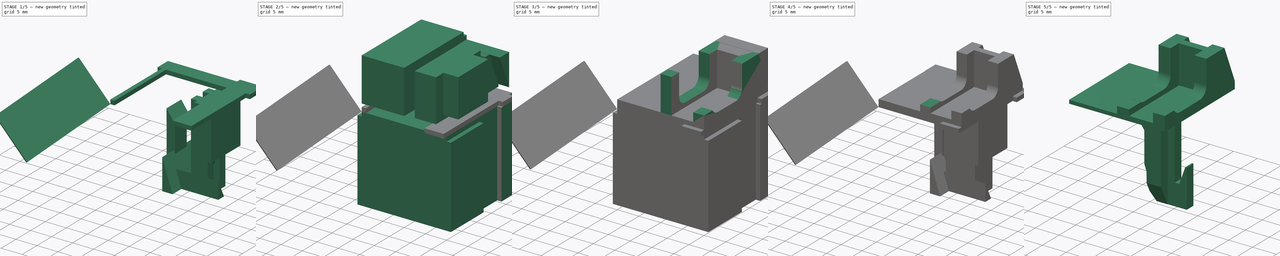
[diagram: build sequence overview — one tinted view per stage of 5, left to right]
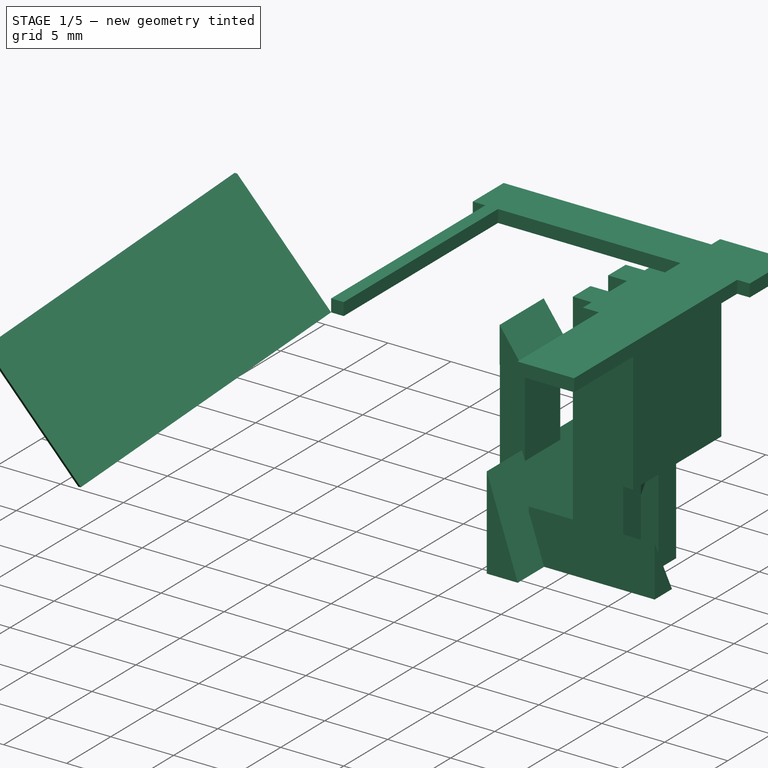
[diagram: stage 1 of 5 — iso view after this stage's code; geometry added in this stage tinted green]
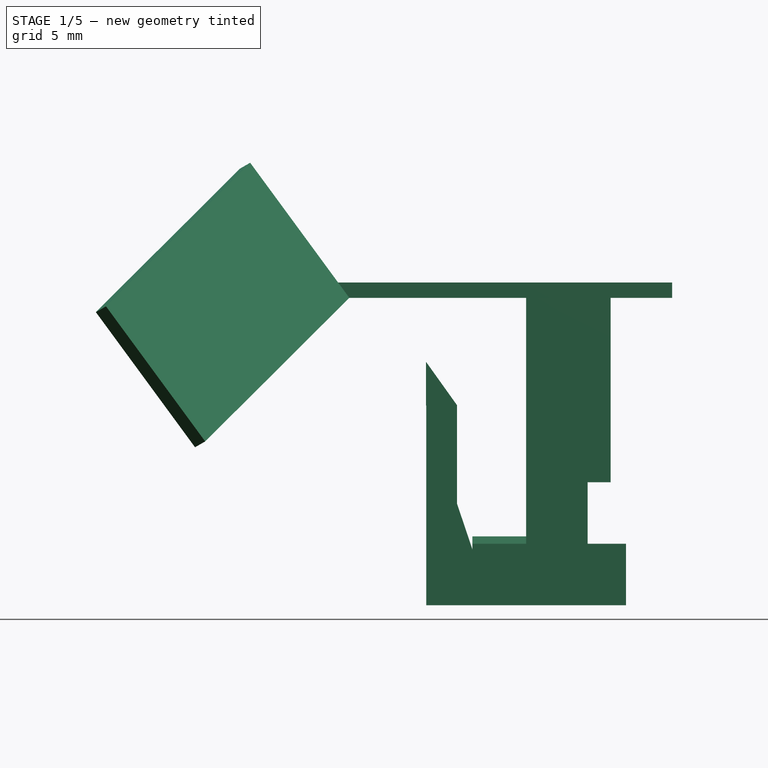
[diagram: stage 1 of 5 — front view after this stage's code; geometry added in this stage tinted green]
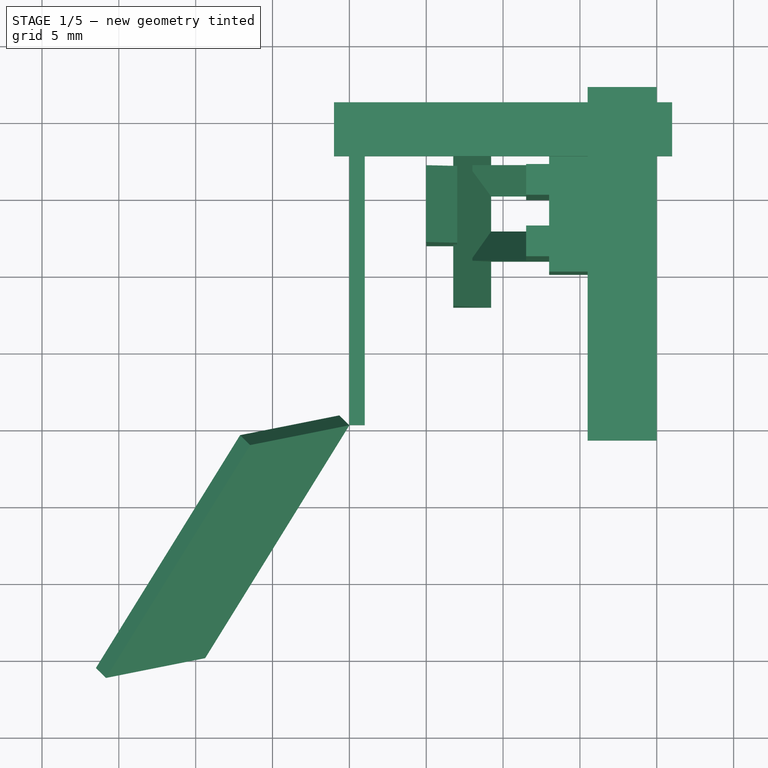
[diagram: stage 1 of 5 — top view after this stage's code; geometry added in this stage tinted green]
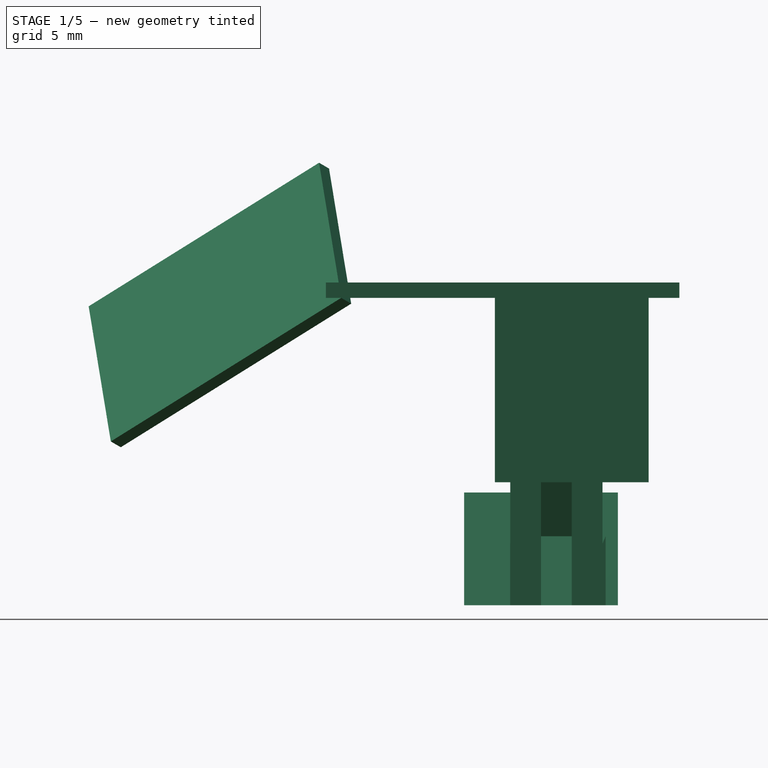
[diagram: stage 1 of 5 — right view after this stage's code; geometry added in this stage tinted green]
FCSTD DOCUMENT  (FreeCAD 0.16R6704 (Git))
Label: CLS700 Paper Guide
License: All rights reserved
LicenseURL: http://en.wikipedia.org/wiki/All_rights_reserved
objects: Part::Cut×30, Part::Box×25, Sketcher::SketchObject×6, PartDesign::Pad×6, PartDesign::Fillet×4
note: 77 computed .brp shape members not serialized (recipe doc carries the construction recipe); baked Part::Feature solids carry a one-line shape summary decoded from their .brp

FEATURE [Part::Box] Box017  label="Cube017"
  Height = 13
  Length = 2
  Placement = pos=(5,12,0) rot=(0,0,1;0rad)
  Width = 4
FEATURE [Sketcher::SketchObject] Sketch001
  Placement = pos=(-0.25,18,0) rot=(1,0,0;1.5708rad)
  sketch-geometry (3):
    g0: LineSegment StartX=7.0095 StartY=7.33571 StartZ=0 EndX=9.47363 EndY=0 EndZ=0
    g1: LineSegment StartX=7.0095 StartY=7.33571 StartZ=0 EndX=7.0095 EndY=0 EndZ=0
    g2: LineSegment StartX=7.0095 StartY=0 StartZ=0 EndX=9.47363 EndY=0 EndZ=0
  constraints (6):
    c: Coincident(g1,g0)
    c: PointOnObject(g1,g-1)
    c: Vertical(g1)
    c: Coincident(g2,g1)
    c: Coincident(g2,g0)
    c: Horizontal(g2)
FEATURE [PartDesign::Pad] Pad001
  Length = 10
  Length2 = 100
  Placement = pos=(-0.25,18,0) rot=(1,0,0;1.5708rad)
  Sketch = -> Sketch001
  Type = 0
FEATURE [Sketcher::SketchObject] Sketch002
  Placement = pos=(0,17,0) rot=(1,0,0;1.5708rad)
  sketch-geometry (3):
    g0: LineSegment StartX=7.01873 StartY=12.9931 StartZ=0 EndX=4.9816 EndY=15.8465 EndZ=0
    g1: LineSegment StartX=4.9816 StartY=15.8465 StartZ=0 EndX=4.9816 EndY=12.9931 EndZ=0
    g2: LineSegment StartX=4.9816 StartY=12.9931 StartZ=0 EndX=7.01873 EndY=12.9931 EndZ=0
  constraints (5):
    c: Coincident(g1,g0)
    c: Vertical(g1)
    c: Coincident(g2,g1)
    c: Coincident(g2,g0)
    c: Horizontal(g2)
FEATURE [PartDesign::Pad] Pad002
  Length = 5
  Length2 = 100
  Placement = pos=(0,17,0) rot=(1,0,0;1.5708rad)
  Sketch = -> Sketch002
  Type = 0
FEATURE [Part::Box] Box018  label="Cube018"
  Height = 12
  Length = 4
  Placement = pos=(13,10,8) rot=(0,0,1;0rad)
  Width = 10
FEATURE [Part::Box] Box019  label="Cube019"
  Height = 20
  Length = 4
  Placement = pos=(11.5,11,0) rot=(0,0,1;0rad)
  Width = 2
FEATURE [Part::Box] Box020  label="Cube020"
  Height = 20
  Length = 4
  Placement = pos=(11.5,15,0) rot=(0,0,1;0rad)
  Width = 2
FEATURE [Sketcher::SketchObject] Sketch003
  Placement = pos=(0,16,0.25) rot=(1,0,0;1.5708rad)
  sketch-geometry (4):
    g0: LineSegment StartX=15.2854 StartY=8.00136 StartZ=0 EndX=13.943 EndY=4.23804 EndZ=0
    g1: LineSegment StartX=12.9937 StartY=4.23804 StartZ=0 EndX=12.9937 EndY=8.00136 EndZ=0
    g2: LineSegment StartX=12.9937 StartY=4.23804 StartZ=0 EndX=13.943 EndY=4.23804 EndZ=0
    g3: LineSegment StartX=15.2854 StartY=8.00136 StartZ=0 EndX=12.9937 EndY=8.00136 EndZ=0
  constraints (5):
    c: Coincident(g2,g1)
    c: Horizontal(g2)
    c: Coincident(g3,g0)
    c: Coincident(g3,g1)
    c: Horizontal(g3)
FEATURE [PartDesign::Pad] Pad003
  Length = 5
  Length2 = 100
  Placement = pos=(0,16,0.25) rot=(1,0,0;1.5708rad)
  Sketch = -> Sketch003
  Type = 0
FEATURE [Sketcher::SketchObject] Sketch004
  Placement = pos=(8,0.25,0) rot=(0.57735,0.57735,0.57735;2.0944rad)
  sketch-geometry (3):
    g0: LineSegment StartX=14.9902 StartY=0 StartZ=0 EndX=16.9522 EndY=4.47879 EndZ=0
    g1: LineSegment StartX=16.9522 StartY=4.47879 StartZ=0 EndX=16.9522 EndY=0 EndZ=0
    g2: LineSegment StartX=16.9522 StartY=0 StartZ=0 EndX=14.9902 EndY=0 EndZ=0
  constraints (6):
    c: Coincident(g1,g0)
    c: PointOnObject(g1,g-1)
    c: Vertical(g1)
    c: Coincident(g2,g1)
    c: Coincident(g2,g0)
    c: Horizontal(g2)
FEATURE [PartDesign::Pad] Pad004
  Length = 4
  Length2 = 100
  Placement = pos=(8,0.25,0) rot=(0.57735,0.57735,0.57735;2.0944rad)
  Sketch = -> Sketch004
  Type = 0
FEATURE [Sketcher::SketchObject] Sketch005
  Placement = pos=(8,0,0) rot=(0.57735,0.57735,0.57735;2.0944rad)
  sketch-geometry (3):
    g0: LineSegment StartX=12.9615 StartY=0 StartZ=0 EndX=10.9932 EndY=4.004 EndZ=0
    g1: LineSegment StartX=12.9615 StartY=0 StartZ=0 EndX=10.9932 EndY=0 EndZ=0
    g2: LineSegment StartX=10.9932 StartY=0 StartZ=0 EndX=10.9932 EndY=4.004 EndZ=0
  constraints (6):
    c: PointOnObject(g0,g-1)
    c: Coincident(g1,g0)
    c: Horizontal(g1)
    c: Coincident(g2,g1)
    c: Coincident(g2,g0)
    c: Vertical(g2)
FEATURE [PartDesign::Pad] Pad005
  Length = 10
  Length2 = 100
  Placement = pos=(8,0,0) rot=(0.57735,0.57735,0.57735;2.0944rad)
  Sketch = -> Sketch005
  Type = 0
FEATURE [Part::Box] Box021  label="Cube021"
  Height = 1
  Length = 22
  Placement = pos=(-1,17.5,20) rot=(0,0,1;0rad)
  Width = 3.5
FEATURE [Part::Box] Box022  label="Cube022"
  Height = 1
  Length = 4.5
  Placement = pos=(15.5,-1,20) rot=(0,0,1;0rad)
  Width = 23
FEATURE [Part::Box] Box023  label="Cube023"
  Height = 1
  Length = 1
  Placement = pos=(0,0,20) rot=(0,0,1;0rad)
  Width = 20
FEATURE [Part::Box] Box024  label="Cube024"
  Height = 1
  Length = 20
  Placement = pos=(-2.37766e-05,2.6875e-05,20) rot=(-0.511323,0.656872,0.554137;3.28912rad)
  Width = 11
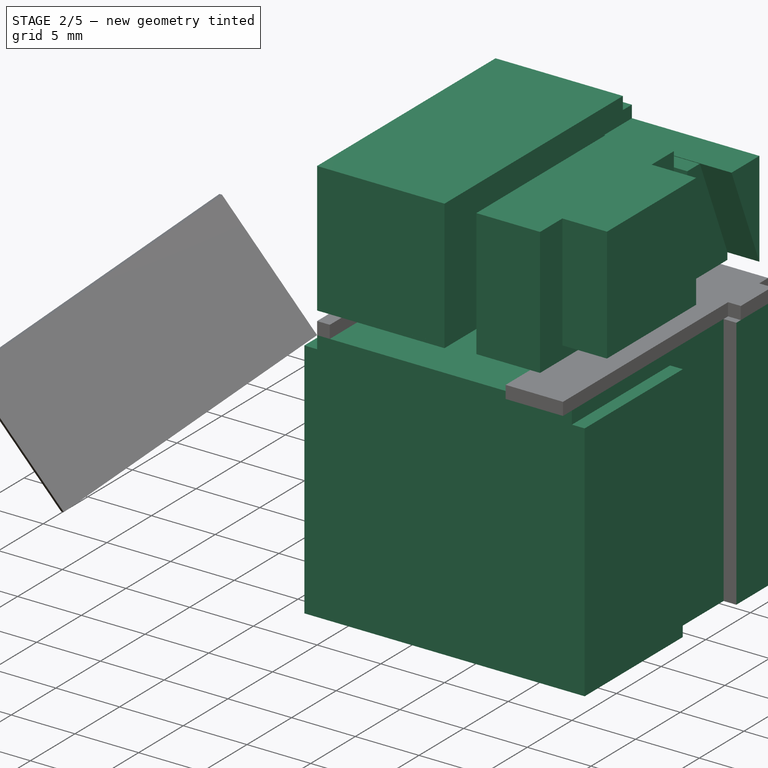
[diagram: stage 2 of 5 — iso view after this stage's code; geometry added in this stage tinted green]
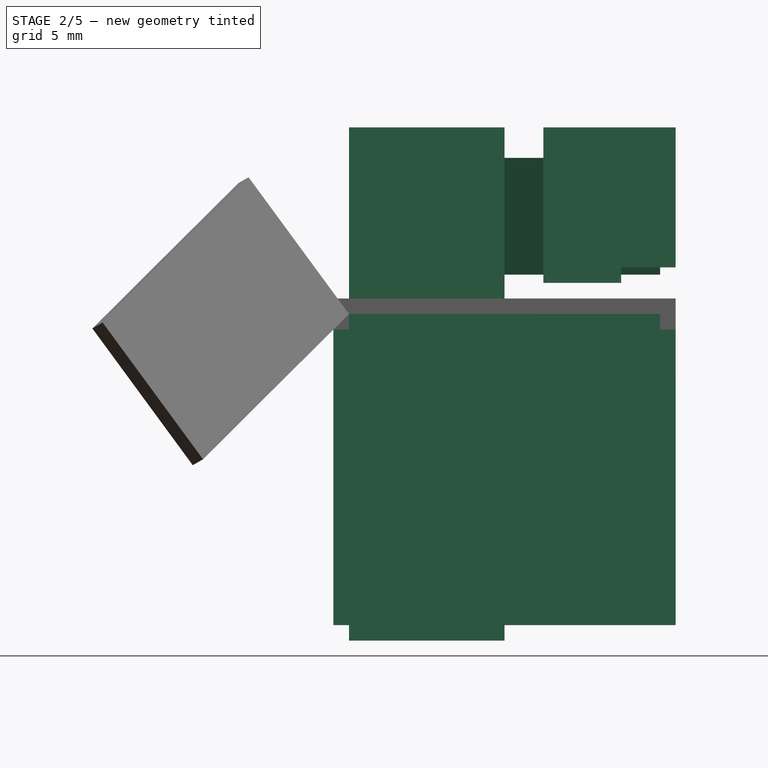
[diagram: stage 2 of 5 — front view after this stage's code; geometry added in this stage tinted green]
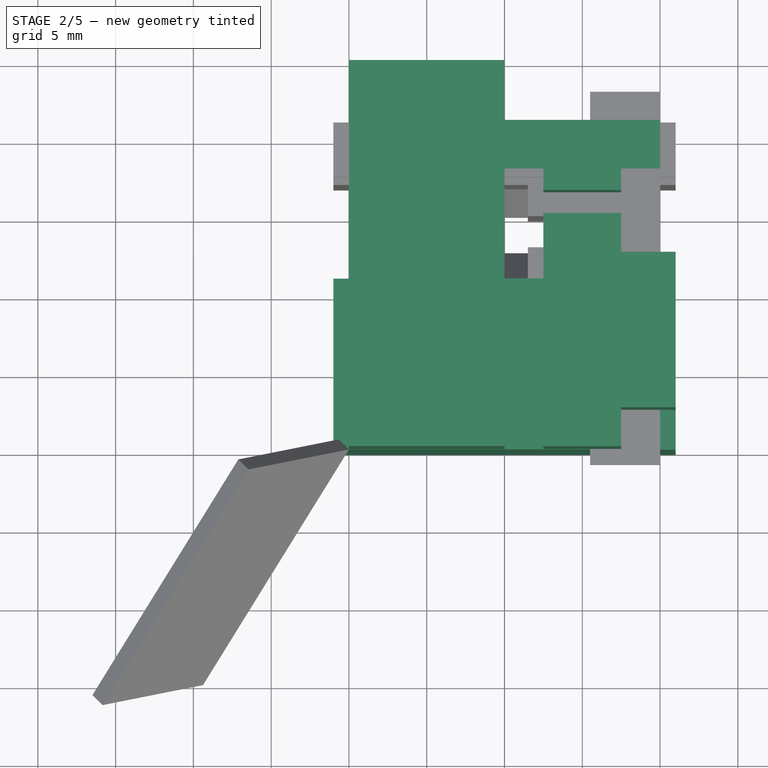
[diagram: stage 2 of 5 — top view after this stage's code; geometry added in this stage tinted green]
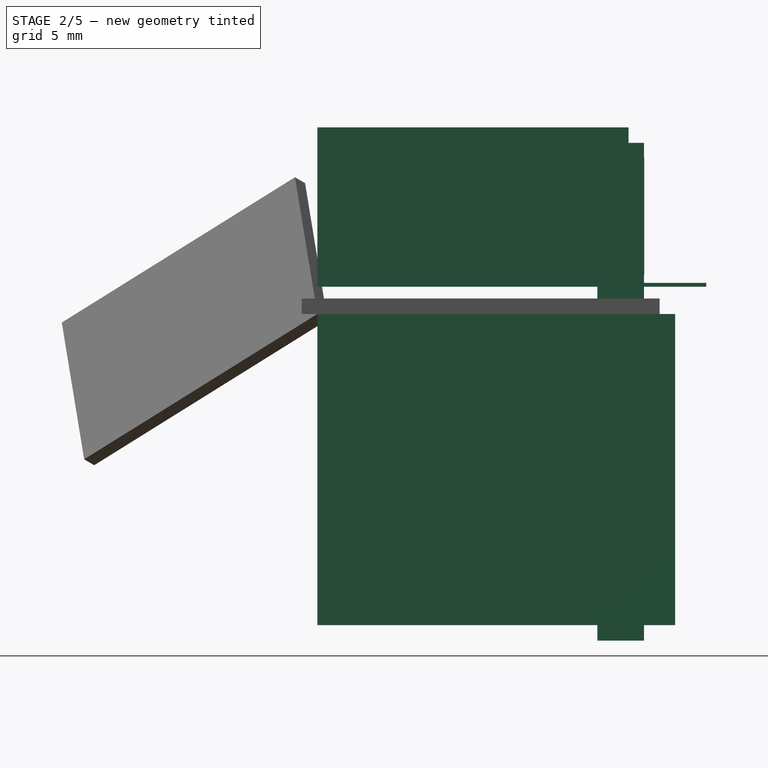
[diagram: stage 2 of 5 — right view after this stage's code; geometry added in this stage tinted green]
FEATURE [Part::Box] Box001  label="Cube001"
  Height = 32
  Length = 10
  Placement = pos=(0,18,-1) rot=(0,0,1;0rad)
  Width = 3
FEATURE [Part::Box] Box002  label="Cube002"
  Height = 10
  Length = 10
  Placement = pos=(0,0,22) rot=(0,0,1;0rad)
  Width = 20
FEATURE [Part::Box] Box003  label="Cube003"
  Height = 10
  Length = 5
  Placement = pos=(12.5,0,22) rot=(0,0,1;0rad)
  Width = 15
FEATURE [Part::Box] Box004  label="Cube004"
  Height = 9
  Length = 4
  Placement = pos=(17,2.5,23) rot=(0,0,1;0rad)
  Width = 10
FEATURE [Part::Box] Box008  label="Cube008"
  Height = 0.25
  Length = 10
  Placement = pos=(0,0,21.75) rot=(0,0,1;0rad)
  Width = 25
FEATURE [Part::Box] Box009  label="Cube009"
  Height = 19
  Length = 22
  Placement = pos=(-1,0,0) rot=(0,0,1;0rad)
  Width = 11
FEATURE [Part::Box] Box010  label="Cube010"
  Height = 2
  Length = 20
  Placement = pos=(0,0,18) rot=(0,0,1;0rad)
  Width = 11
FEATURE [Part::Box] Box011  label="Cube011"
  Height = 20
  Length = 22
  Placement = pos=(-1,17,0) rot=(0,0,1;0rad)
  Width = 4
FEATURE [Part::Box] Box012  label="Cube012"
  Height = 20
  Length = 5
  Placement = pos=(0,11,0) rot=(0,0,1;0rad)
  Width = 6
FEATURE [Part::Box] Box013  label="Cube013"
  Height = 20
  Length = 4.5
  Placement = pos=(15.5,0,0) rot=(0,0,1;0rad)
  Width = 23
FEATURE [Part::Box] Box014  label="Cube014"
  Height = 8
  Length = 5
  Placement = pos=(12.5,16.5,22) rot=(0,0,1;0rad)
  Width = 4.5
FEATURE [Sketcher::SketchObject] Sketch
  Placement = pos=(10,0,0) rot=(0.57735,0.57735,0.57735;2.0944rad)
  sketch-geometry (3):
    g0: LineSegment StartX=17.8891 StartY=30.0372 StartZ=0 EndX=21.0119 EndY=22.5325 EndZ=0
    g1: LineSegment StartX=17.8891 StartY=30.0372 StartZ=0 EndX=21.0119 EndY=30.0372 EndZ=0
    g2: LineSegment StartX=21.0119 StartY=22.5325 StartZ=0 EndX=21.0119 EndY=30.0372 EndZ=0
  constraints (5):
    c: Coincident(g1,g0)
    c: Horizontal(g1)
    c: Coincident(g2,g0)
    c: Coincident(g2,g1)
    c: Vertical(g2)
FEATURE [PartDesign::Pad] Pad
  Length = 10
  Length2 = 100
  Placement = pos=(10,0,0) rot=(0.57735,0.57735,0.57735;2.0944rad)
  Sketch = -> Sketch
  Type = 0
FEATURE [Part::Box] Box015  label="Cube015"
  Height = 20
  Length = 3.5
  Placement = pos=(5,11,0) rot=(0,0,1;0rad)
  Width = 1.5
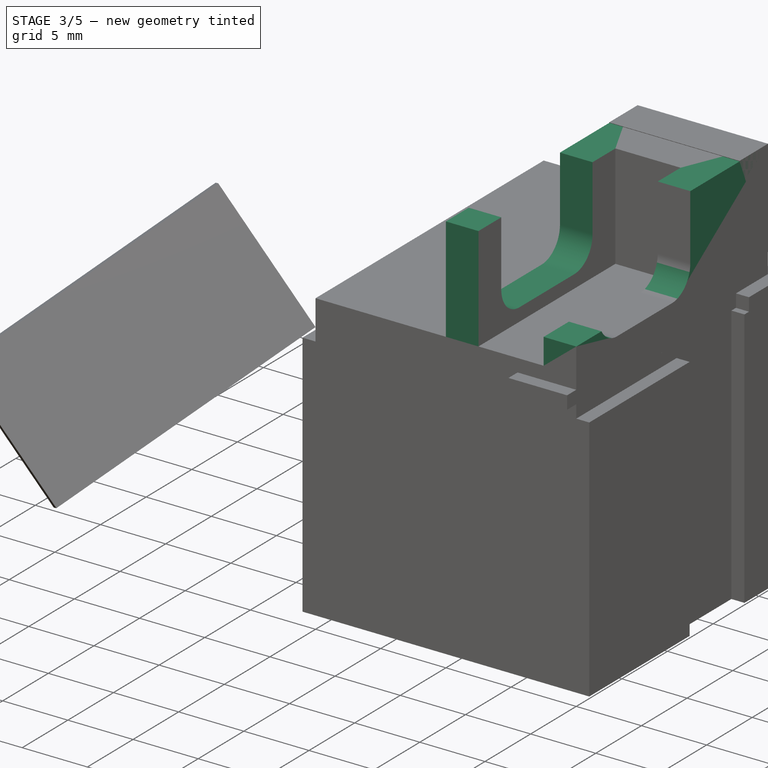
[diagram: stage 3 of 5 — iso view after this stage's code; geometry added in this stage tinted green]
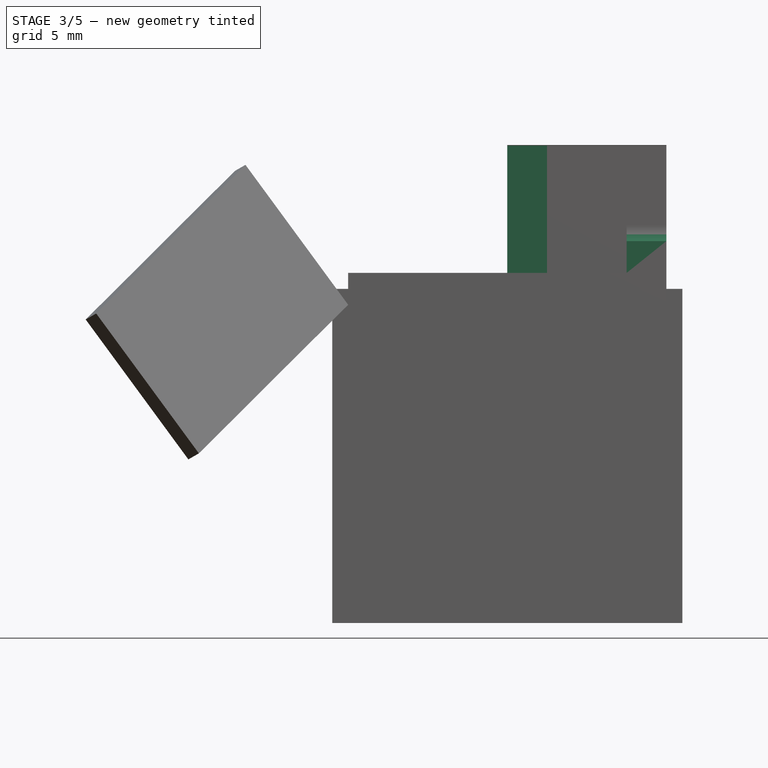
[diagram: stage 3 of 5 — front view after this stage's code; geometry added in this stage tinted green]
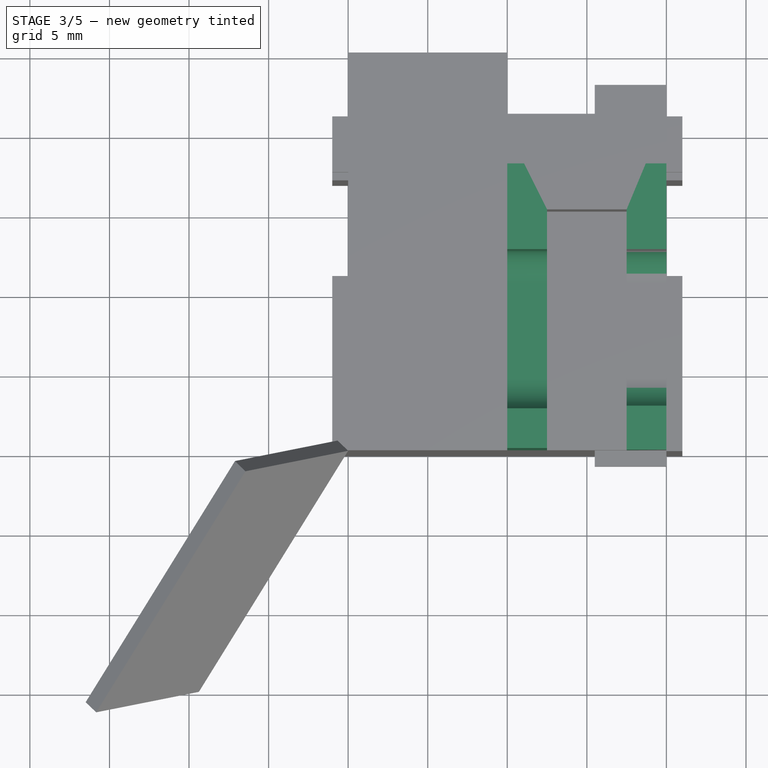
[diagram: stage 3 of 5 — top view after this stage's code; geometry added in this stage tinted green]
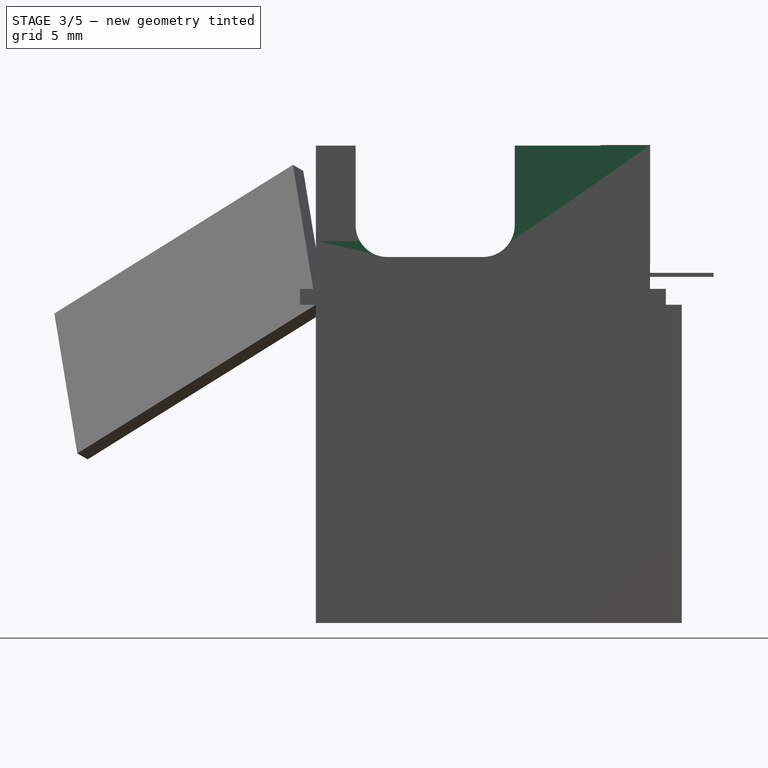
[diagram: stage 3 of 5 — right view after this stage's code; geometry added in this stage tinted green]
FEATURE [Part::Box] Box  label="Cube"
  Height = 30
  Length = 20
  Width = 21
FEATURE [Part::Cut] Cut
  Base = -> Box
  Tool = -> Box001
FEATURE [Part::Cut] Cut001
  Base = -> Cut
  Tool = -> Box002
FEATURE [Part::Cut] Cut002
  Base = -> Cut001
  Tool = -> Box003
FEATURE [Part::Cut] Cut003
  Base = -> Cut002
  Tool = -> Box004
FEATURE [Part::Box] Box005  label="Cube005"
  Height = 7
  Length = 4
  Placement = pos=(16,0,24) rot=(0,0,1;0rad)
  Width = 4
FEATURE [Part::Box] Box006  label="Cube006"
  Height = 8
  Length = 4
  Placement = pos=(9,2.5,23) rot=(0,0,1;0rad)
  Width = 10
FEATURE [PartDesign::Fillet] Fillet
  Base = -> Cut003 [Edge49]
  Radius = 2
FEATURE [PartDesign::Fillet] Fillet001
  Base = -> Fillet [Edge17]
  Radius = 2
FEATURE [Part::Cut] Cut004
  Base = -> Fillet001
  Tool = -> Box005
FEATURE [Part::Cut] Cut005
  Base = -> Cut004
  Tool = -> Box006
FEATURE [PartDesign::Fillet] Fillet002
  Base = -> Cut005 [Edge65]
  Radius = 2
FEATURE [PartDesign::Fillet] Fillet003
  Base = -> Fillet002 [Edge18]
  Radius = 2
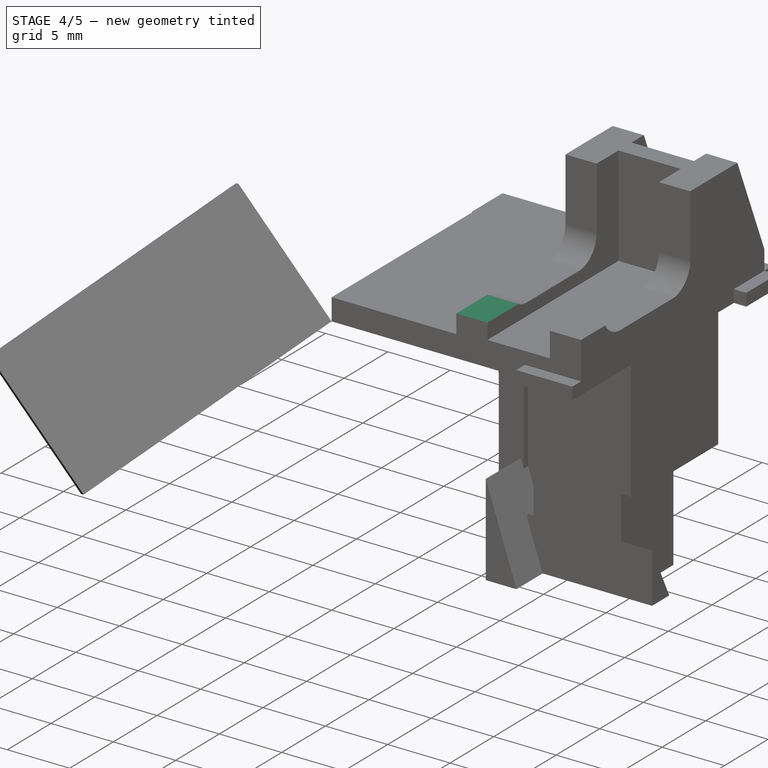
[diagram: stage 4 of 5 — iso view after this stage's code; geometry added in this stage tinted green]
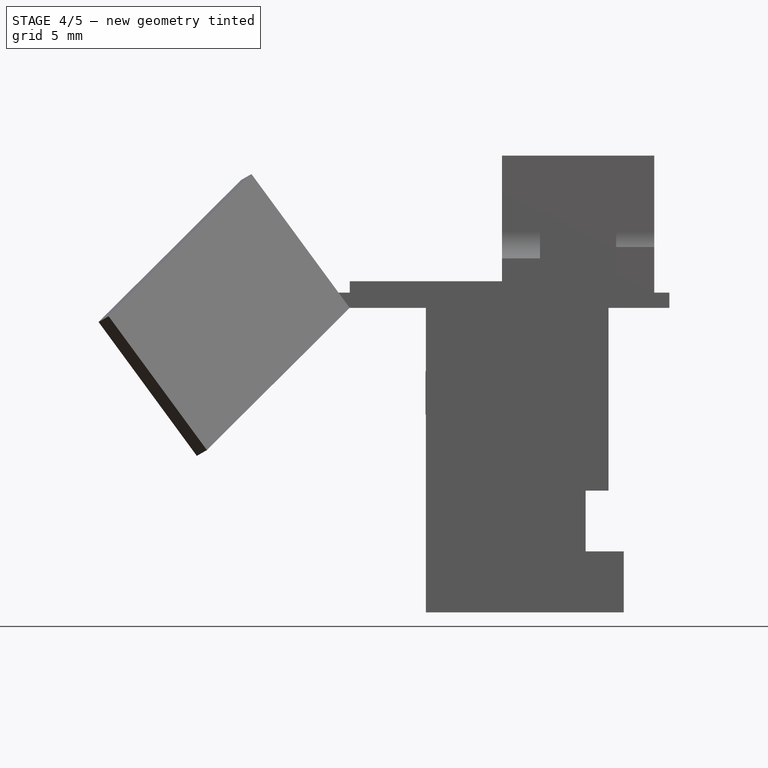
[diagram: stage 4 of 5 — front view after this stage's code; geometry added in this stage tinted green]
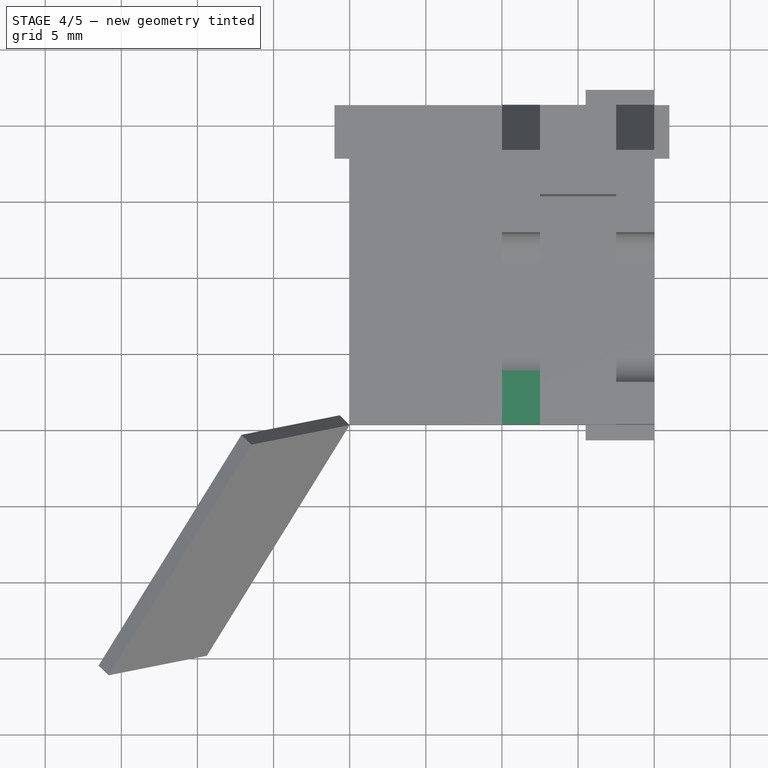
[diagram: stage 4 of 5 — top view after this stage's code; geometry added in this stage tinted green]
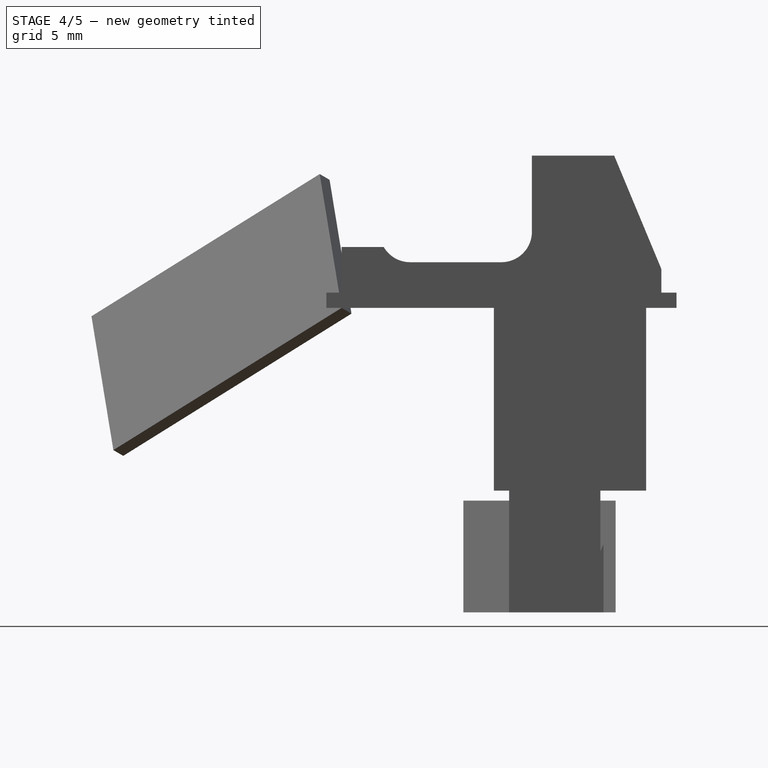
[diagram: stage 4 of 5 — right view after this stage's code; geometry added in this stage tinted green]
FEATURE [Part::Box] Box007  label="Cube007"
  Height = 8
  Length = 4
  Placement = pos=(9,0,23.25) rot=(0,0,1;0rad)
  Width = 4
FEATURE [Part::Cut] Cut006
  Base = -> Fillet003
  Tool = -> Box007
FEATURE [Part::Cut] Cut007
  Base = -> Cut006
  Tool = -> Box008
FEATURE [Part::Cut] Cut008
  Base = -> Cut007
  Tool = -> Box009
FEATURE [Part::Cut] Cut009
  Base = -> Cut008
  Tool = -> Box010
FEATURE [Part::Cut] Cut010
  Base = -> Cut009
  Tool = -> Box011
FEATURE [Part::Cut] Cut011
  Base = -> Cut010
  Tool = -> Box012
FEATURE [Part::Cut] Cut012
  Base = -> Cut011
  Tool = -> Box013
FEATURE [Part::Cut] Cut013
  Base = -> Cut012
  Tool = -> Box014
FEATURE [Part::Cut] Cut014
  Base = -> Cut013
  Tool = -> Pad
FEATURE [Part::Box] Box016  label="Cube016"
  Height = 20
  Length = 3.5
  Placement = pos=(5,15.5,0) rot=(0,0,1;0rad)
  Width = 1.5
FEATURE [Part::Cut] Cut015
  Base = -> Cut014
  Tool = -> Box015
FEATURE [Part::Cut] Cut016
  Base = -> Cut015
  Tool = -> Box016
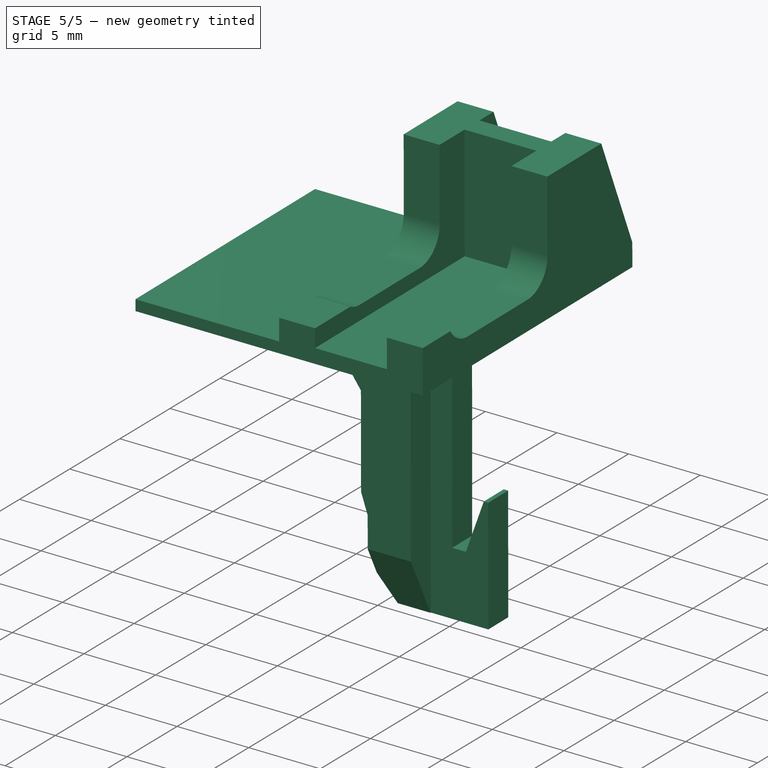
[diagram: stage 5 of 5 — iso view after this stage's code; geometry added in this stage tinted green]
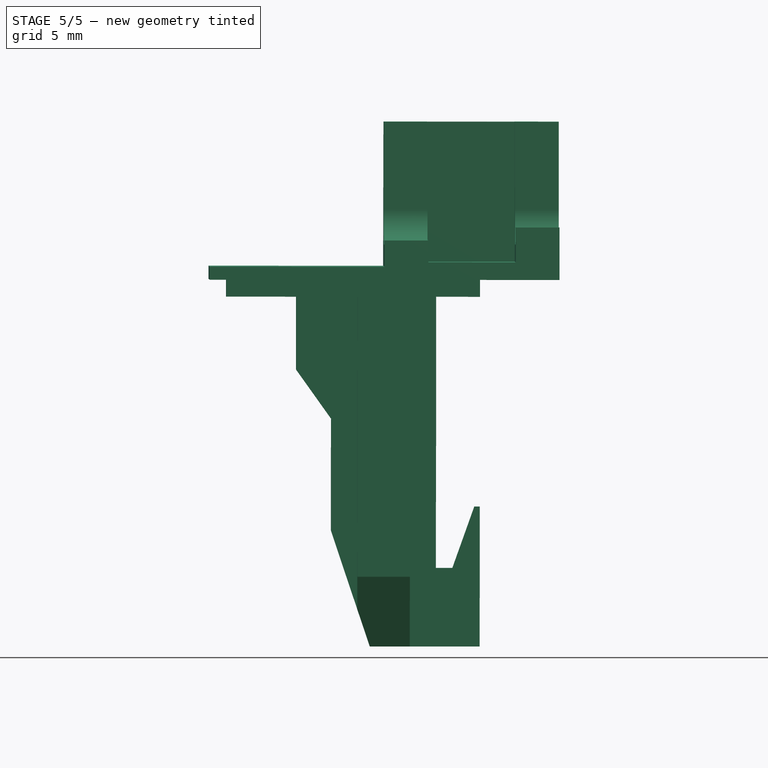
[diagram: stage 5 of 5 — front view after this stage's code; geometry added in this stage tinted green]
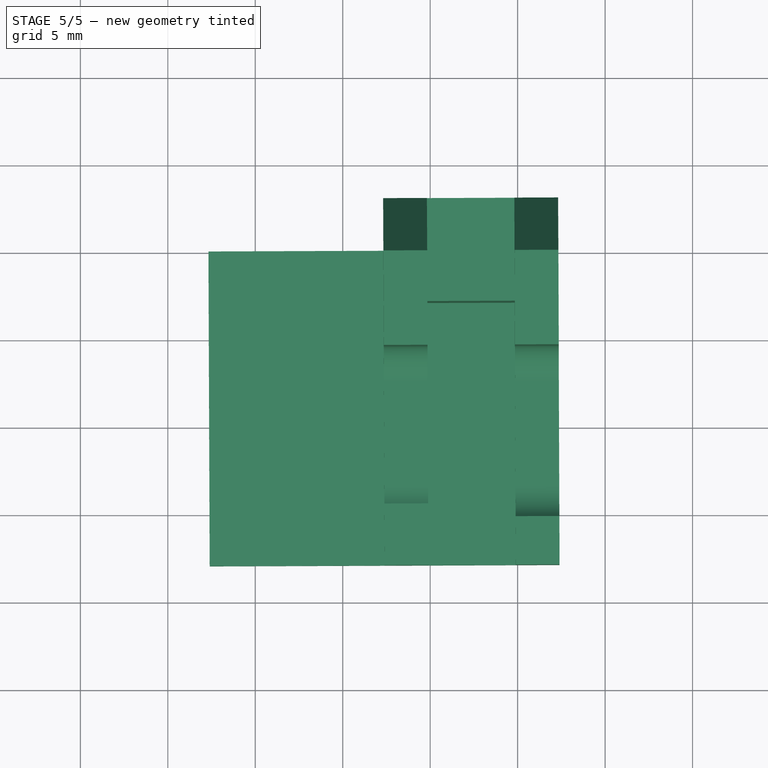
[diagram: stage 5 of 5 — top view after this stage's code; geometry added in this stage tinted green]
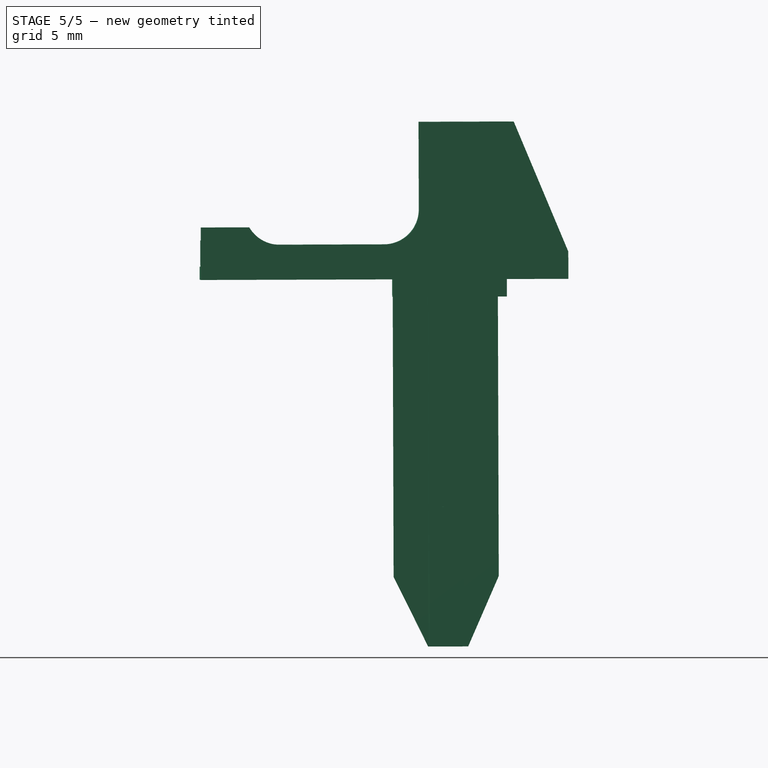
[diagram: stage 5 of 5 — right view after this stage's code; geometry added in this stage tinted green]
FEATURE [Part::Cut] Cut017
  Base = -> Cut016
  Tool = -> Box017
FEATURE [Part::Cut] Cut018
  Base = -> Cut017
  Tool = -> Pad001
FEATURE [Part::Cut] Cut019
  Base = -> Cut018
  Tool = -> Pad002
FEATURE [Part::Cut] Cut020
  Base = -> Cut019
  Tool = -> Box018
FEATURE [Part::Cut] Cut021
  Base = -> Cut020
  Tool = -> Box019
FEATURE [Part::Cut] Cut022
  Base = -> Cut021
  Tool = -> Box020
FEATURE [Part::Cut] Cut023
  Base = -> Cut022
  Tool = -> Pad003
FEATURE [Part::Cut] Cut024
  Base = -> Cut023
  Tool = -> Pad004
FEATURE [Part::Cut] Cut025
  Base = -> Cut024
  Tool = -> Pad005
FEATURE [Part::Cut] Cut026
  Base = -> Cut025
  Tool = -> Box021
FEATURE [Part::Cut] Cut027
  Base = -> Cut026
  Tool = -> Box022
FEATURE [Part::Cut] Cut028
  Base = -> Cut027
  Tool = -> Box023
FEATURE [Part::Cut] Cut029
  Base = -> Cut028
  Placement = pos=(47.3797,-138.215,57.4361) rot=(0.613592,0.132356,0.778451;0.005134rad)
  Tool = -> Box024
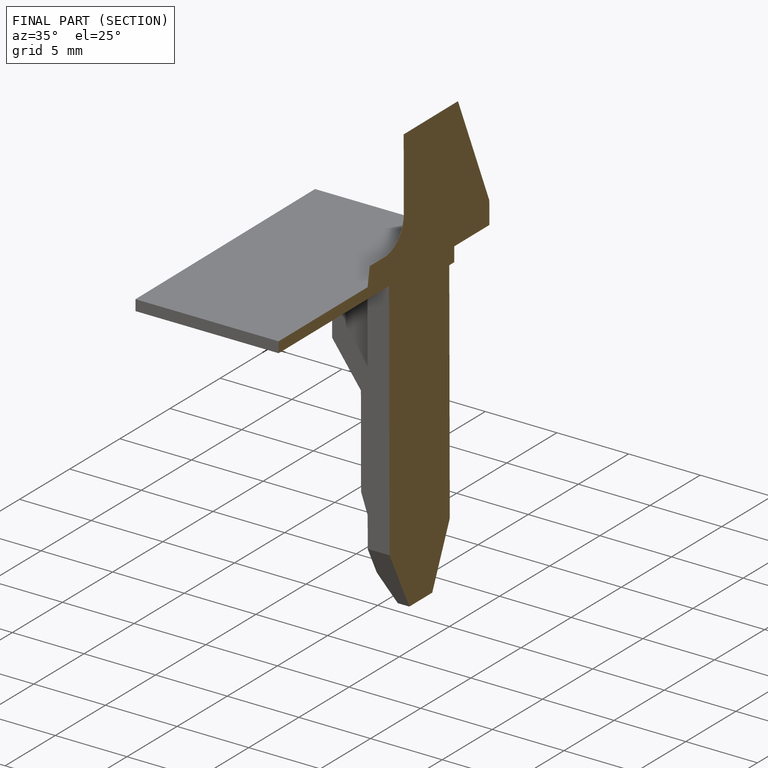
[diagram: finished part — half-section view (interior)]
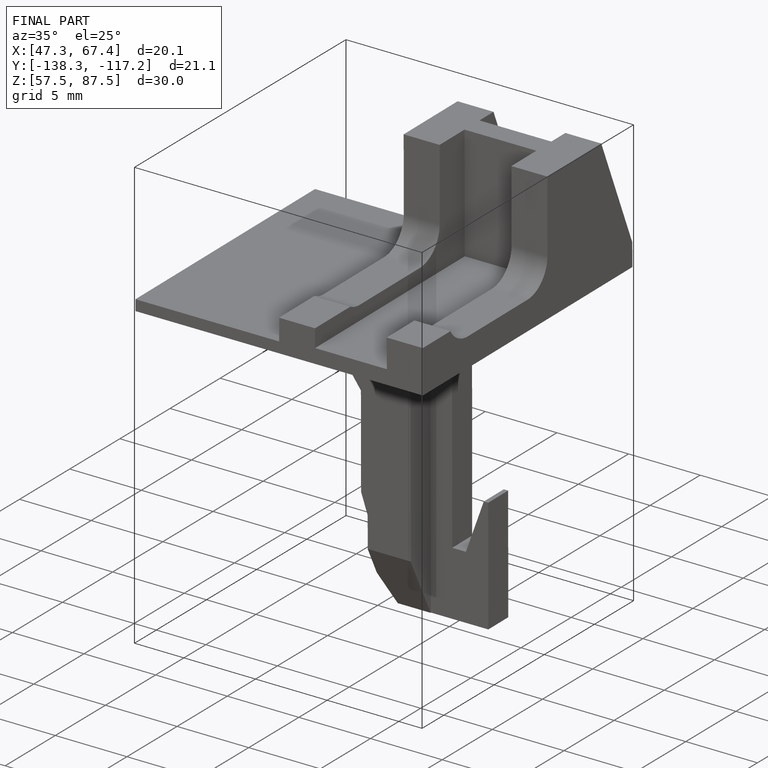
[diagram: finished part — iso view with bounding-box wireframe]
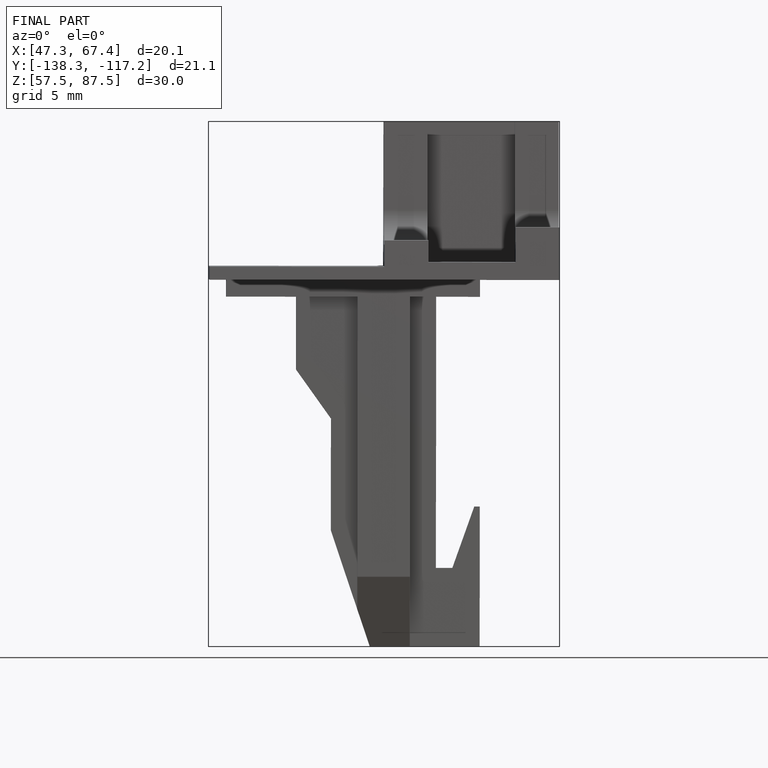
[diagram: finished part — front view with bounding-box wireframe]
